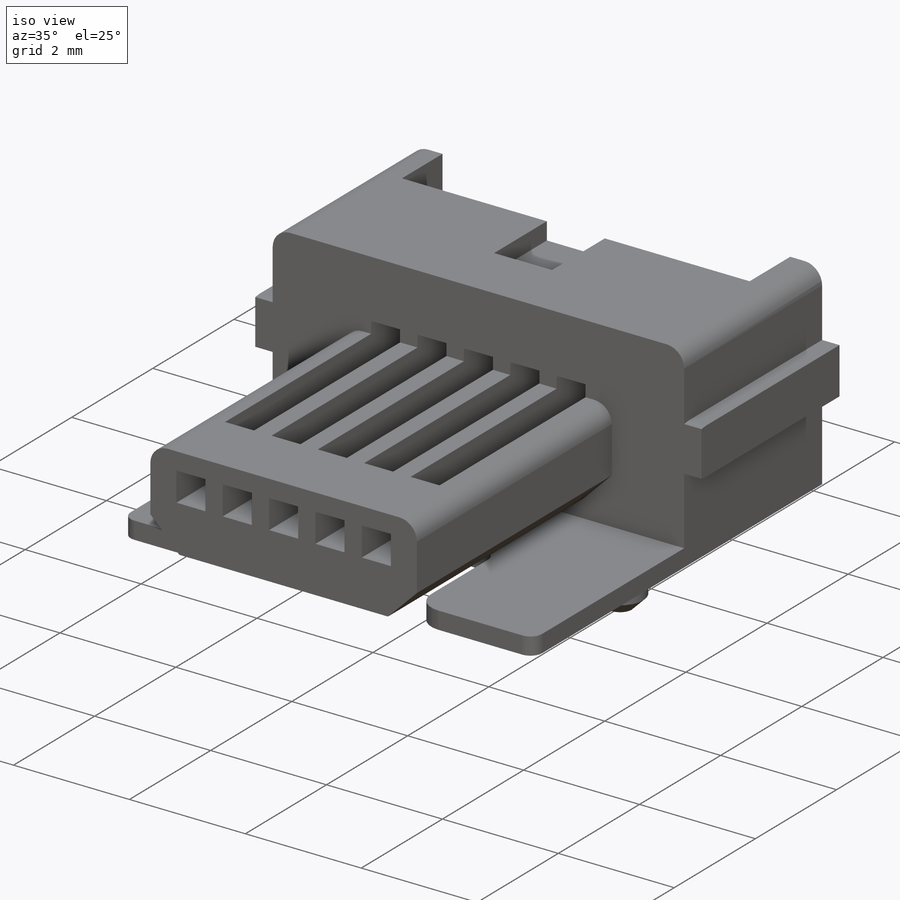
[diagram: iso view]
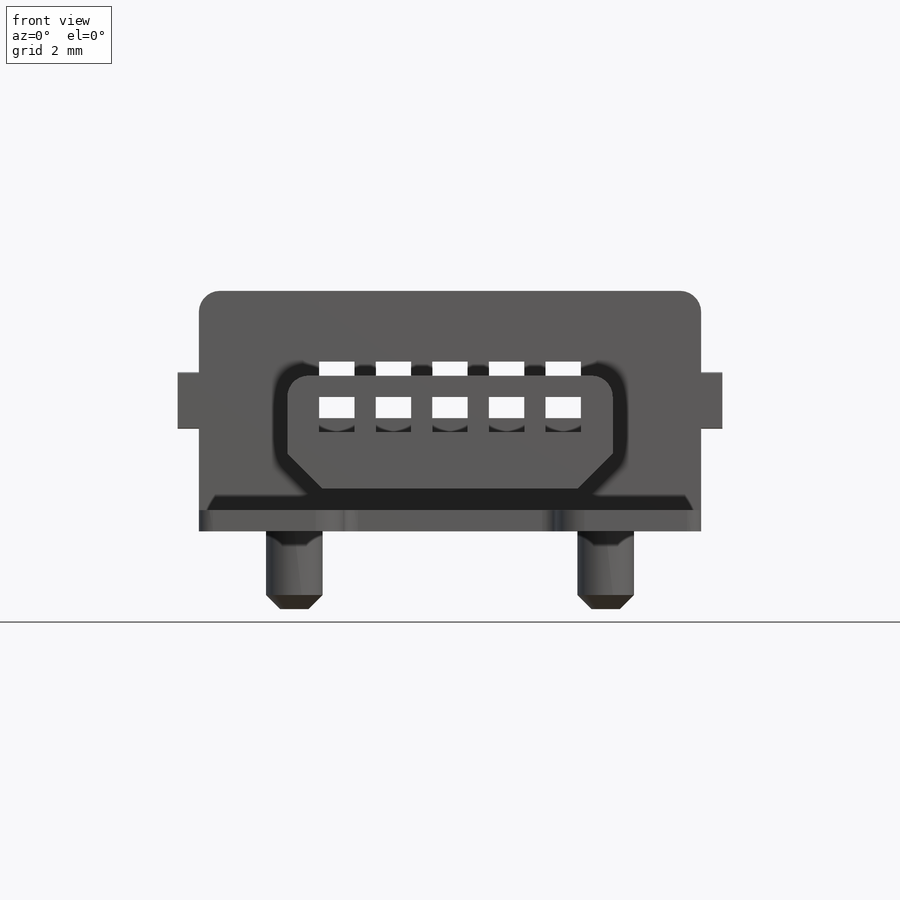
[diagram: front view]
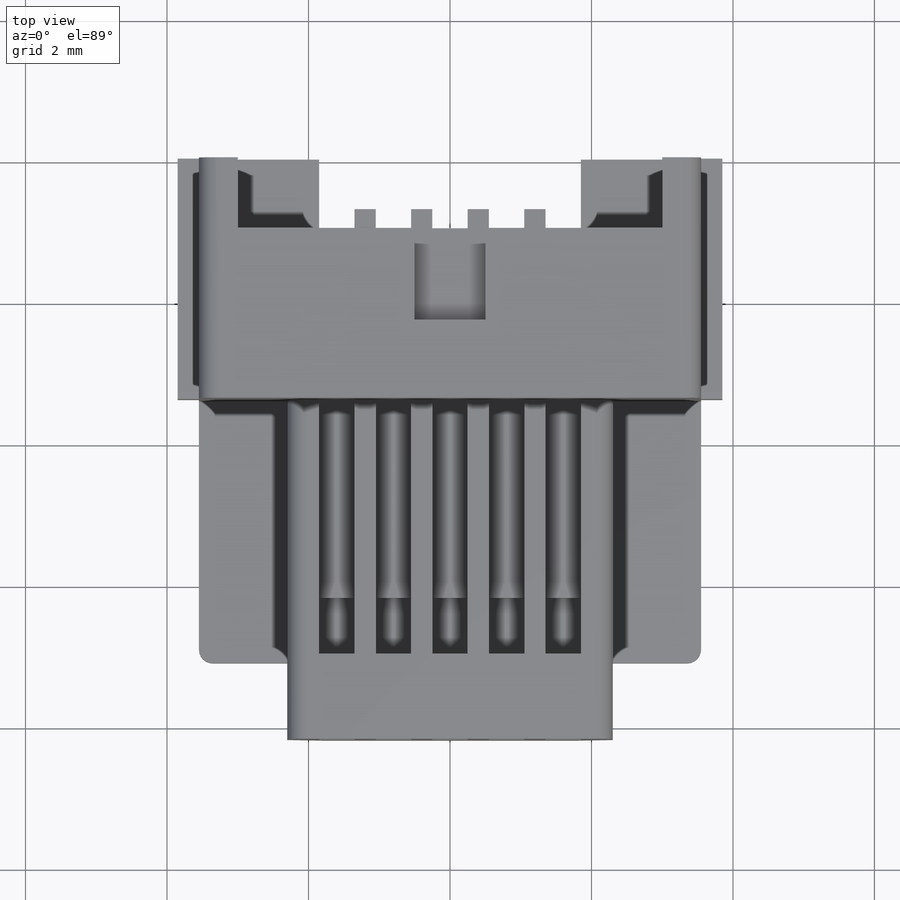
[diagram: top view]
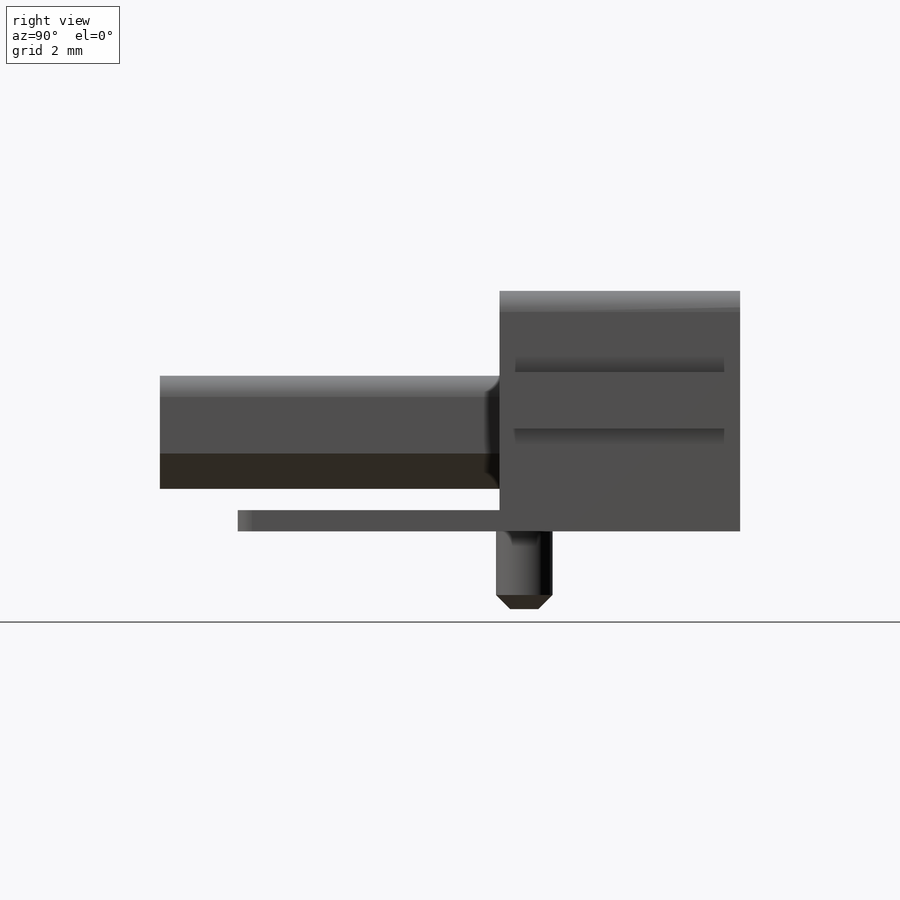
[diagram: right view]
SOLIDWORKS PART (.sldprt)
format: sldprt  version: not decoded by parser v0  size: 527,872 bytes
history: native  units: mm
features: sketch x12, cut_extrude x8, extrude x4, fillet x3, material x1, chamfer x1 (+11 scaffold rows collapsed)
feature tree (40):
  scaffold x11  (default folders/planes/origin — collapsed)
  material  "ABS"
  sketch  "Sketch1"  dims[D3=0.3mm D1=3.4mm D2=7.1mm]
  extrude  "Boss-Extrude1"  Depth=8.2mm
  sketch  "Sketch2"  dims[D1=0.8mm D2=1.45mm D3=3.3mm]
  extrude  "Boss-Extrude2"  Depth=7.7mm
  sketch  "Sketch3"  dims[D5=0.3mm D1=4.6mm D2=1.6mm D3=0.6mm D4=2.3mm]
  cut_extrude  "Cut-Extrude1"  Depth=4.8mm
  sketch  "Sketch4"  dims[D1=1.0mm D2=0.5mm D3=0.3mm]
  cut_extrude  "Cut-Extrude3"  Depth=2.3mm
  sketch  "Sketch5"  dims[D1=3.7mm D2=1.85mm D3=0.3mm D4=0.5mm D5=1.0mm]
  cut_extrude  "Cut-Extrude6"  [1 undecoded]
  sketch  "Sketch6"  dims[D1=1.9mm D2=0.5mm]
  cut_extrude  "Cut-Extrude7"  Depth=2mm
  sketch  "Sketch7"  dims[D1=0.8mm D2=1.6mm]
  cut_extrude  "Cut-Extrude8"  Depth=7mm
  sketch  "Sketch8"  dims[D1=6.0mm D2=3.0mm]
  cut_extrude  "Cut-Extrude9"  Depth=2mm
  sketch  "Sketch9"  dims[D1=0.5mm]
  cut_extrude  "Cut-Extrude10"  Depth=1mm
  sketch  "Sketch10"  dims[D1=0.8mm D2=0.35mm D3=2.2mm D4=4.4mm]
  extrude  "Boss-Extrude3"  Depth=1.1mm
  chamfer  "Chamfer1"  Distance=0.2mm Angle=45deg
  sketch  "Sketch11"  dims[D1=0.3mm]
  extrude  "Boss-Extrude4"  Depth=3.7mm
  fillet  "Fillet1"  Radius=0.2mm
  sketch  "Sketch12"  dims[D1=3.0mm D2=1.5mm D3=2.0mm]
  cut_extrude  "Cut-Extrude11"  Depth=0.5mm
  fillet  "Fillet2"  Radius=0.2mm
  fillet  "Fillet3"  Radius=0.4mm
decode coverage: 27 of 28 modeling features carry decoded parameters
note: 1 parameter value undecoded
note: suppression state not decoded; provenance and decode notes live in map.json
